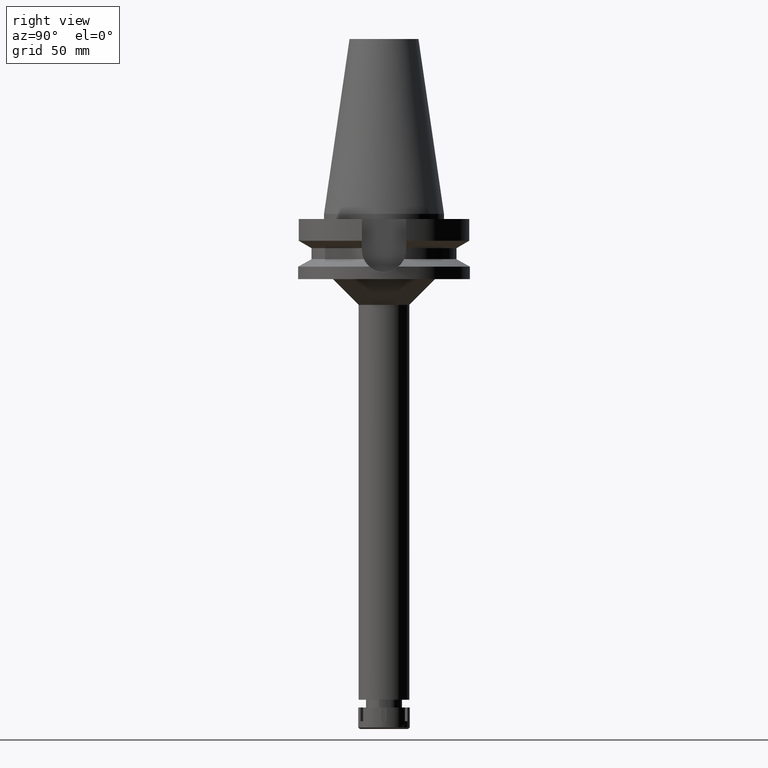
[diagram: clean part render]
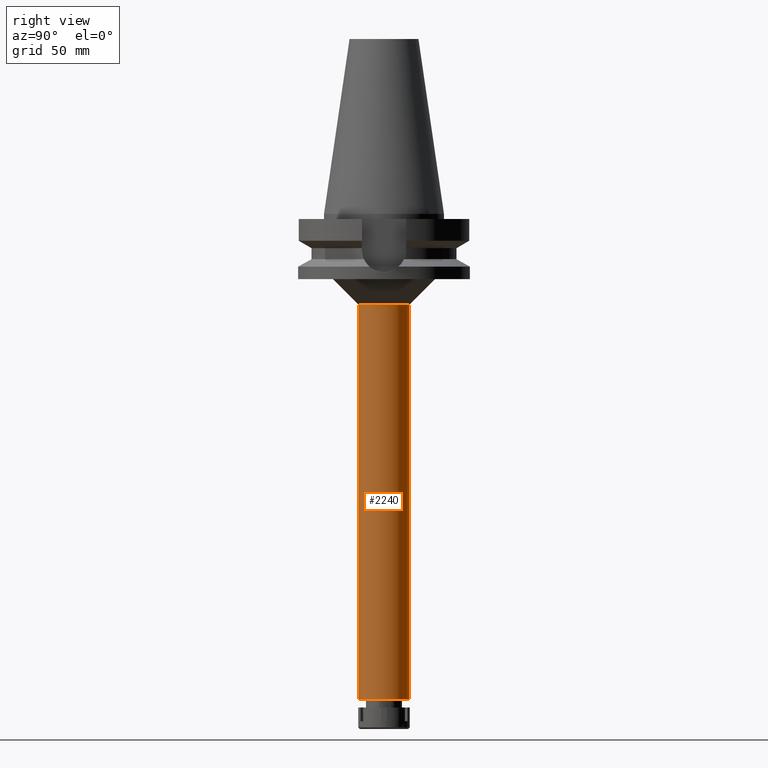
[diagram: same view with one face highlighted and labeled with its STEP entity id]
A machine part, right view. The second image highlights one B-rep face of the part: STEP entity #2240.
In plain terms, the highlighted cylindrical surface (edge-blend (fillet) strip) has radius 14.75 mm, axis along (0, 0, -1).
Its self-contained STEP definition (entity closure, byte-faithful):
#4 = ORIENTED_EDGE ( 'NONE', *, *, #1340, .T. ) ;
#54 = CARTESIAN_POINT ( 'NONE',  ( 0.0000000000000000000, 0.0000000000000000000, -53.00000000000000000 ) ) ;
#91 = AXIS2_PLACEMENT_3D ( 'NONE', #3147, #2332, #1256 ) ;
#143 = CARTESIAN_POINT ( 'NONE',  ( 0.0000000000000000000, -14.75000000000000000, -283.0000000000000000 ) ) ;
#536 = EDGE_CURVE ( 'NONE', #2214, #1556, #2750, .T. ) ;
#751 = VECTOR ( 'NONE', #3501, 1000.000000000000000 ) ;
#792 = VERTEX_POINT ( 'NONE', #1160 ) ;
#1059 = LINE ( 'NONE', #2968, #2282 ) ;
#1160 = CARTESIAN_POINT ( 'NONE',  ( 0.0000000000000000000, -14.75000000000000000, -53.00000000000000000 ) ) ;
#1206 = AXIS2_PLACEMENT_3D ( 'NONE', #2334, #1566, #1544 ) ;
#1256 = DIRECTION ( 'NONE',  ( 0.0000000000000000000, -1.000000000000000000, 0.0000000000000000000 ) ) ;
#1257 = FACE_OUTER_BOUND ( 'NONE', #2995, .T. ) ;
#1262 = ORIENTED_EDGE ( 'NONE', *, *, #1884, .F. ) ;
#1340 = EDGE_CURVE ( 'NONE', #2960, #792, #3034, .T. ) ;
#1407 = CARTESIAN_POINT ( 'NONE',  ( 0.0000000000000000000, 14.75000000000000000, -283.0000000000000000 ) ) ;
#1531 = LINE ( 'NONE', #2641, #751 ) ;
#1544 = DIRECTION ( 'NONE',  ( 0.0000000000000000000, -1.000000000000000000, 0.0000000000000000000 ) ) ;
#1556 = VERTEX_POINT ( 'NONE', #1407 ) ;
#1566 = DIRECTION ( 'NONE',  ( 0.0000000000000000000, 0.0000000000000000000, -1.000000000000000000 ) ) ;
#1665 = ORIENTED_EDGE ( 'NONE', *, *, #2204, .T. ) ;
#1745 = DIRECTION ( 'NONE',  ( 0.0000000000000000000, 0.0000000000000000000, -1.000000000000000000 ) ) ;
#1752 = AXIS2_PLACEMENT_3D ( 'NONE', #54, #1745, #3454 ) ;
#1884 = EDGE_CURVE ( 'NONE', #2960, #1556, #1059, .T. ) ;
#2130 = ORIENTED_EDGE ( 'NONE', *, *, #536, .T. ) ;
#2204 = EDGE_CURVE ( 'NONE', #792, #2214, #1531, .T. ) ;
#2214 = VERTEX_POINT ( 'NONE', #143 ) ;
#2240 = ADVANCED_FACE ( 'NONE', ( #1257 ), #2601, .T. ) ;
#2282 = VECTOR ( 'NONE', #2423, 1000.000000000000000 ) ;
#2332 = DIRECTION ( 'NONE',  ( 0.0000000000000000000, 0.0000000000000000000, 1.000000000000000000 ) ) ;
#2334 = CARTESIAN_POINT ( 'NONE',  ( 0.0000000000000000000, 2.713082518830999647E-14, 121.5399999999999920 ) ) ;
#2423 = DIRECTION ( 'NONE',  ( 0.0000000000000000000, 0.0000000000000000000, -1.000000000000000000 ) ) ;
#2601 = CYLINDRICAL_SURFACE ( 'NONE', #1206, 14.75000000000000000 ) ;
#2641 = CARTESIAN_POINT ( 'NONE',  ( 0.0000000000000000000, -14.75000000000000000, -53.00000000000000000 ) ) ;
#2750 = CIRCLE ( 'NONE', #91, 14.75000000000000000 ) ;
#2886 = CARTESIAN_POINT ( 'NONE',  ( 0.0000000000000000000, 14.75000000000000000, -53.00000000000000000 ) ) ;
#2960 = VERTEX_POINT ( 'NONE', #2886 ) ;
#2968 = CARTESIAN_POINT ( 'NONE',  ( 0.0000000000000000000, 14.75000000000000000, -53.00000000000000000 ) ) ;
#2995 = EDGE_LOOP ( 'NONE', ( #4, #1665, #2130, #1262 ) ) ;
#3034 = CIRCLE ( 'NONE', #1752, 14.75000000000000000 ) ;
#3147 = CARTESIAN_POINT ( 'NONE',  ( 0.0000000000000000000, 2.713082518830999647E-14, -283.0000000000000000 ) ) ;
#3454 = DIRECTION ( 'NONE',  ( 0.0000000000000000000, 1.000000000000000000, 0.0000000000000000000 ) ) ;
#3501 = DIRECTION ( 'NONE',  ( 0.0000000000000000000, 0.0000000000000000000, -1.000000000000000000 ) ) ;